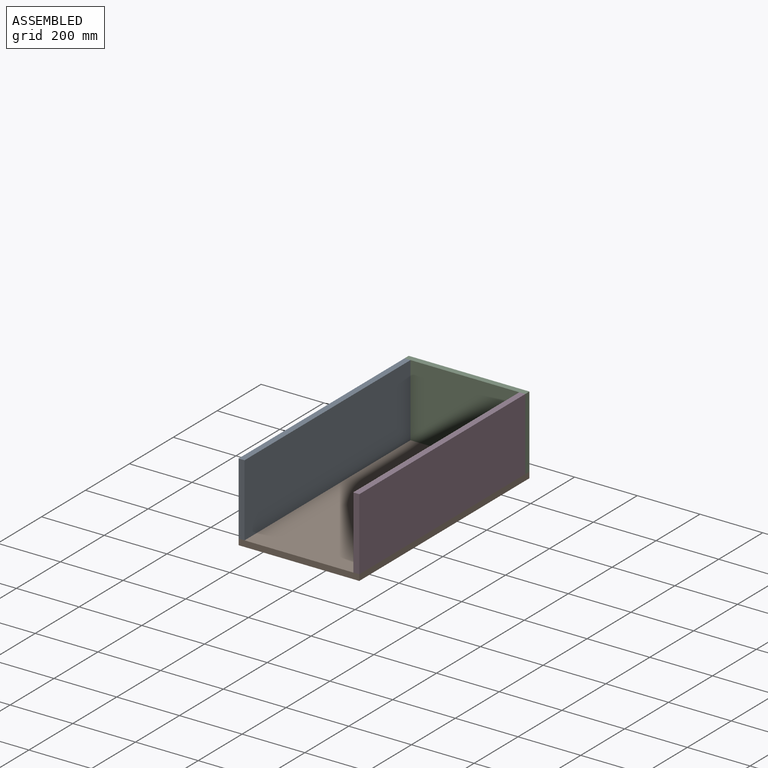
[diagram: assembled view]
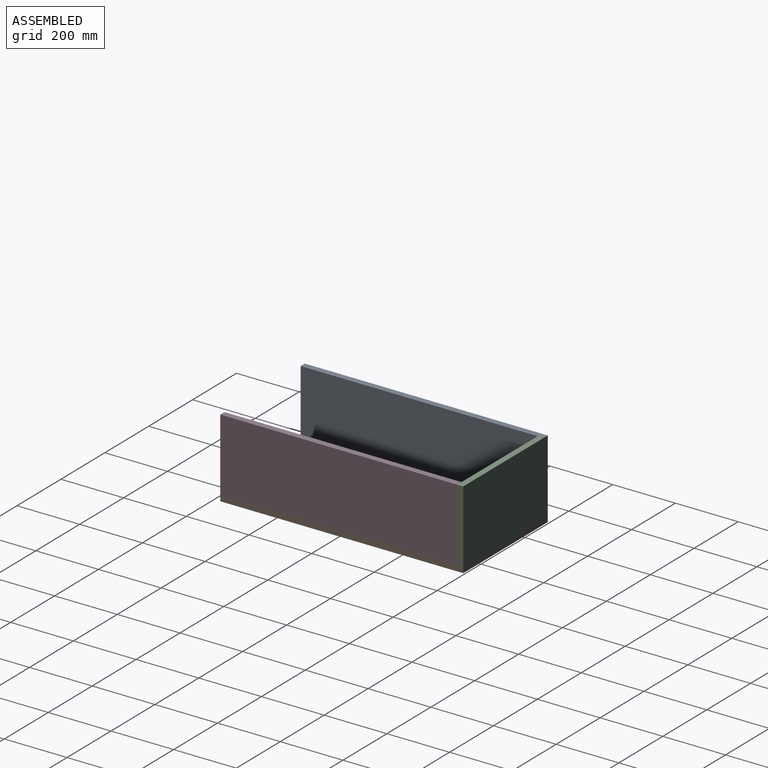
[diagram: assembled view, second angle]
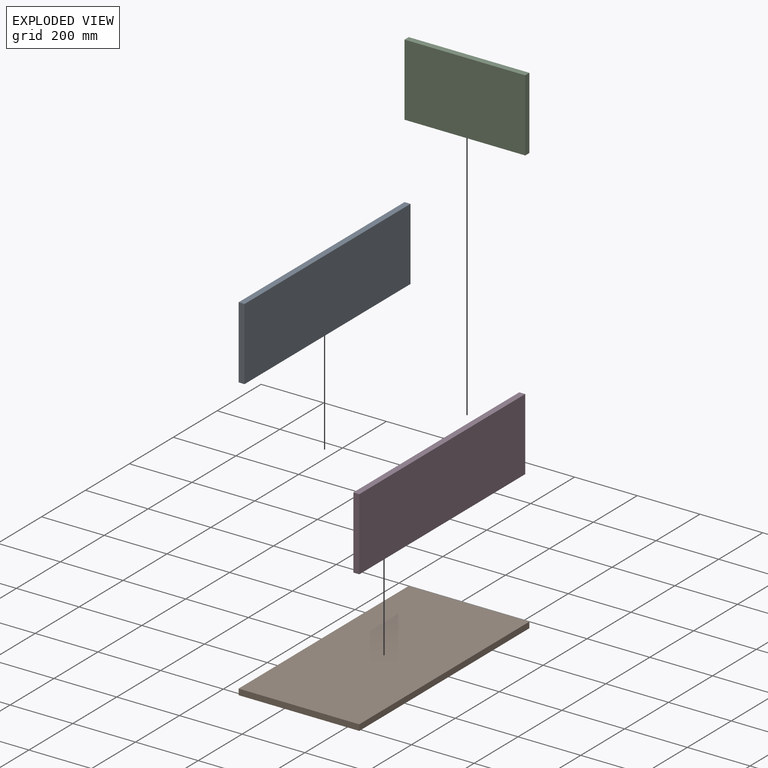
[diagram: exploded view]
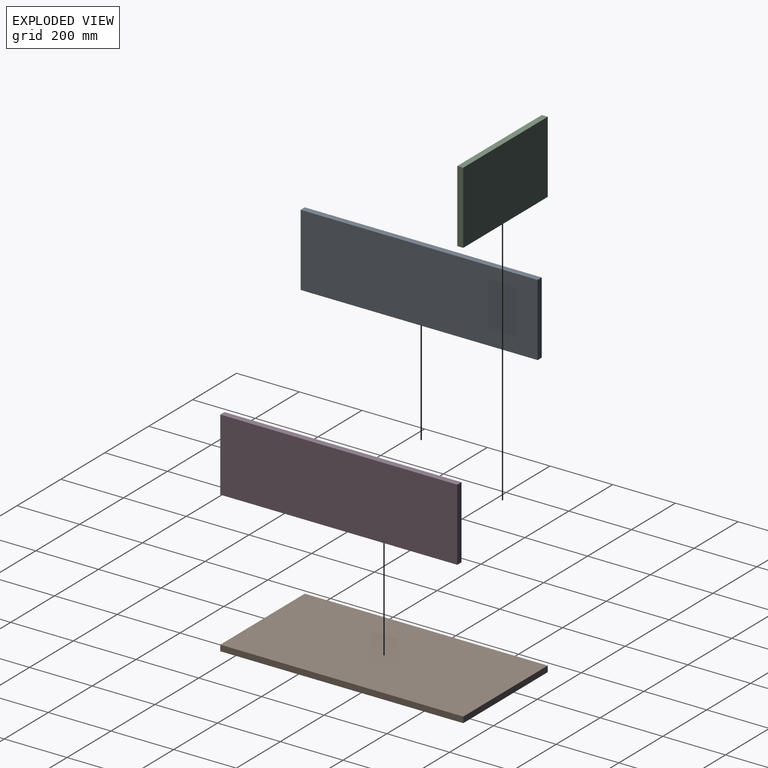
[diagram: exploded view, second angle]
ASSEMBLY  parts=4 mates=3
PART A: 6 faces, bbox 19x756x231 mm
  f0: plane 756x19mm, normal (0,0,1), area 14364mm2, adj f1,f3,f4,f5
  f1: plane 231x19mm, normal (0,-1,0), area 4389mm2, adj f0,f2,f4,f5
  f2: plane 756x19mm, normal (0,0,-1), area 14364mm2, adj f1,f3,f4,f5
  f3: plane 231x19mm, normal (0,1,0), area 4389mm2, adj f0,f2,f4,f5
  f4: plane 756x231mm, normal (1,0,0), area 174636mm2, adj f0,f1,f2,f3
  f5: plane 756x231mm, normal (-1,0,0), area 174636mm2, adj f0,f1,f2,f3
PART B: 6 faces, bbox 385x775x19 mm
  f0: plane 385x19mm, normal (0,1,0), area 7315mm2, adj f1,f3,f4,f5
  f1: plane 775x19mm, normal (-1,0,0), area 14725mm2, adj f0,f2,f4,f5
  f2: plane 385x19mm, normal (0,-1,0), area 7315mm2, adj f1,f3,f4,f5
  f3: plane 775x19mm, normal (1,0,0), area 14725mm2, adj f0,f2,f4,f5
  f4: plane 775x385mm, normal (0,0,1), area 298375mm2, adj f0,f1,f2,f3
  f5: plane 775x385mm, normal (0,0,-1), area 298375mm2, adj f0,f1,f2,f3
PART C: 6 faces, bbox 385x19x231 mm
  f0: plane 385x19mm, normal (0,0,1), area 7315mm2, adj f1,f3,f4,f5
  f1: plane 231x19mm, normal (-1,0,0), area 4389mm2, adj f0,f2,f4,f5
  f2: plane 385x19mm, normal (0,0,-1), area 7315mm2, adj f1,f3,f4,f5
  f3: plane 231x19mm, normal (1,0,0), area 4389mm2, adj f0,f2,f4,f5
  f4: plane 385x231mm, normal (0,-1,0), area 88935mm2, adj f0,f1,f2,f3
  f5: plane 385x231mm, normal (0,1,0), area 88935mm2, adj f0,f1,f2,f3
PART D: same geometry as A
PLACE A t=(-128.82,-40.67,79.49)mm
PLACE B t=(79.95,25.73,-69.99)mm fixed
PLACE C t=(54.34,542.99,61.69)mm
PLACE D t=(237.18,-40.67,79.49)mm
MATE fastened B.f4 <-> A.f2  axis (0,0,1) through (-128.82,-232.01,-50.99)mm
MATE fastened D.f2 <-> B.f4  axis (0,0,-1) through (256.18,-232.01,-50.99)mm
MATE fastened B.f4 <-> C.f2  axis (0,0,1) through (-128.82,542.99,-50.99)mm
